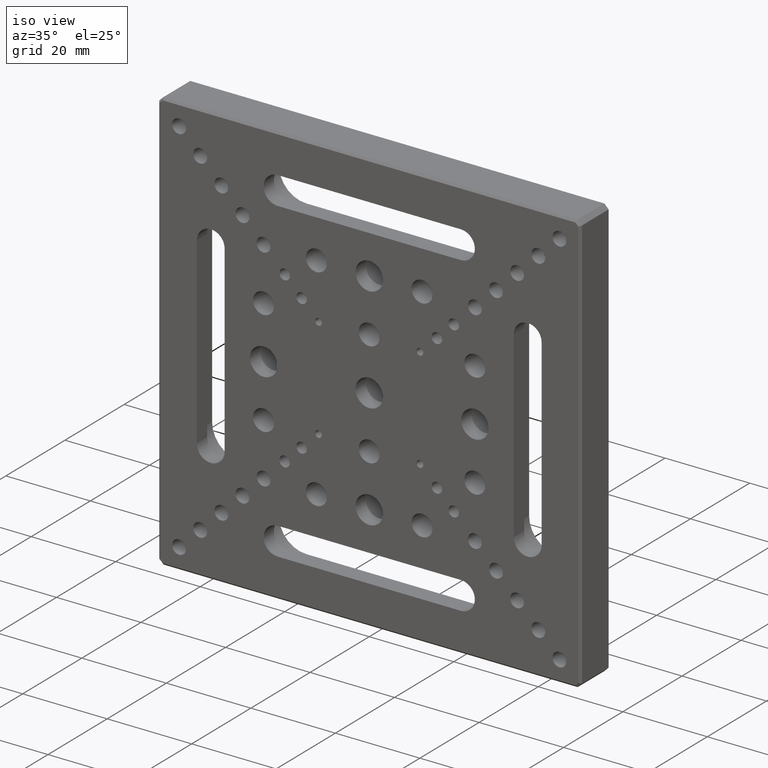
[diagram: clean part render]
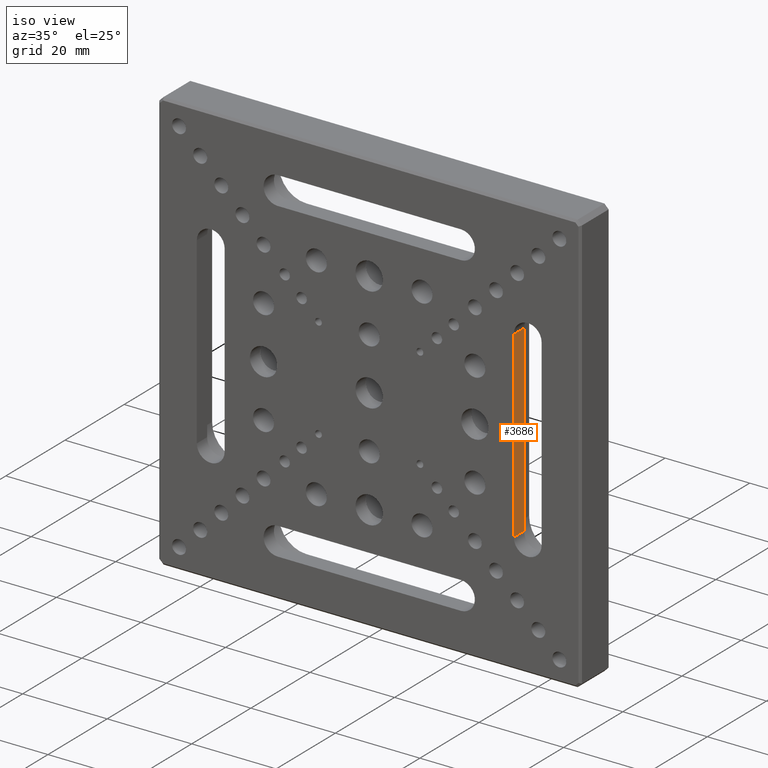
[diagram: same view with one face highlighted and labeled with its STEP entity id]
A machine part, iso view. The second image highlights one B-rep face of the part: STEP entity #3686.
In plain terms, the highlighted planar face has unit normal (-1, 0, 0).
Its self-contained STEP definition (entity closure, byte-faithful):
#103 = VERTEX_POINT ( 'NONE', #2657 ) ;
#258 = DIRECTION ( 'NONE',  ( -0.000000000000000000, 1.000000000000000000, -0.000000000000000000 ) ) ;
#345 = PLANE ( 'NONE',  #4606 ) ;
#774 = CARTESIAN_POINT ( 'NONE',  ( 34.20000000000000995, 0.000000000000000000, 21.69999999999999929 ) ) ;
#892 = EDGE_LOOP ( 'NONE', ( #3123, #1661, #1974, #2093 ) ) ;
#1515 = DIRECTION ( 'NONE',  ( 0.000000000000000000, 0.000000000000000000, 1.000000000000000000 ) ) ;
#1520 = VECTOR ( 'NONE', #3841, 1000.000000000000000 ) ;
#1661 = ORIENTED_EDGE ( 'NONE', *, *, #3107, .F. ) ;
#1783 = VERTEX_POINT ( 'NONE', #774 ) ;
#1838 = DIRECTION ( 'NONE',  ( 0.000000000000000000, 0.000000000000000000, -1.000000000000000000 ) ) ;
#1887 = FACE_OUTER_BOUND ( 'NONE', #892, .T. ) ;
#1968 = CARTESIAN_POINT ( 'NONE',  ( 34.20000000000000995, 3.499999999999999556, 21.69999999999999929 ) ) ;
#1974 = ORIENTED_EDGE ( 'NONE', *, *, #3681, .F. ) ;
#2093 = ORIENTED_EDGE ( 'NONE', *, *, #2735, .T. ) ;
#2148 = VECTOR ( 'NONE', #1838, 1000.000000000000000 ) ;
#2186 = LINE ( 'NONE', #3752, #2487 ) ;
#2242 = EDGE_CURVE ( 'NONE', #2759, #103, #2618, .T. ) ;
#2487 = VECTOR ( 'NONE', #258, 1000.000000000000000 ) ;
#2618 = LINE ( 'NONE', #3034, #2148 ) ;
#2656 = LINE ( 'NONE', #4920, #1520 ) ;
#2657 = CARTESIAN_POINT ( 'NONE',  ( 34.20000000000000995, 3.499999999999999556, -21.69999999999999929 ) ) ;
#2735 = EDGE_CURVE ( 'NONE', #2832, #103, #2186, .T. ) ;
#2759 = VERTEX_POINT ( 'NONE', #1968 ) ;
#2832 = VERTEX_POINT ( 'NONE', #4288 ) ;
#3034 = CARTESIAN_POINT ( 'NONE',  ( 34.20000000000000995, 3.499999999999999556, -21.69999999999999929 ) ) ;
#3072 = CARTESIAN_POINT ( 'NONE',  ( 34.20000000000000995, 0.000000000000000000, -21.69999999999999929 ) ) ;
#3107 = EDGE_CURVE ( 'NONE', #1783, #2759, #2656, .T. ) ;
#3123 = ORIENTED_EDGE ( 'NONE', *, *, #2242, .F. ) ;
#3452 = LINE ( 'NONE', #3072, #3533 ) ;
#3533 = VECTOR ( 'NONE', #1515, 1000.000000000000000 ) ;
#3681 = EDGE_CURVE ( 'NONE', #2832, #1783, #3452, .T. ) ;
#3686 = ADVANCED_FACE ( 'NONE', ( #1887 ), #345, .F. ) ;
#3752 = CARTESIAN_POINT ( 'NONE',  ( 34.20000000000000995, 0.000000000000000000, -21.69999999999999929 ) ) ;
#3836 = CARTESIAN_POINT ( 'NONE',  ( 34.20000000000000995, 0.000000000000000000, -21.69999999999999929 ) ) ;
#3841 = DIRECTION ( 'NONE',  ( -0.000000000000000000, 1.000000000000000000, -0.000000000000000000 ) ) ;
#4288 = CARTESIAN_POINT ( 'NONE',  ( 34.20000000000000995, 0.000000000000000000, -21.69999999999999929 ) ) ;
#4606 = AXIS2_PLACEMENT_3D ( 'NONE', #3836, #5011, #4631 ) ;
#4631 = DIRECTION ( 'NONE',  ( 0.000000000000000000, 0.000000000000000000, 1.000000000000000000 ) ) ;
#4920 = CARTESIAN_POINT ( 'NONE',  ( 34.20000000000000995, 0.000000000000000000, 21.69999999999999929 ) ) ;
#5011 = DIRECTION ( 'NONE',  ( -1.000000000000000000, 0.000000000000000000, 0.000000000000000000 ) ) ;